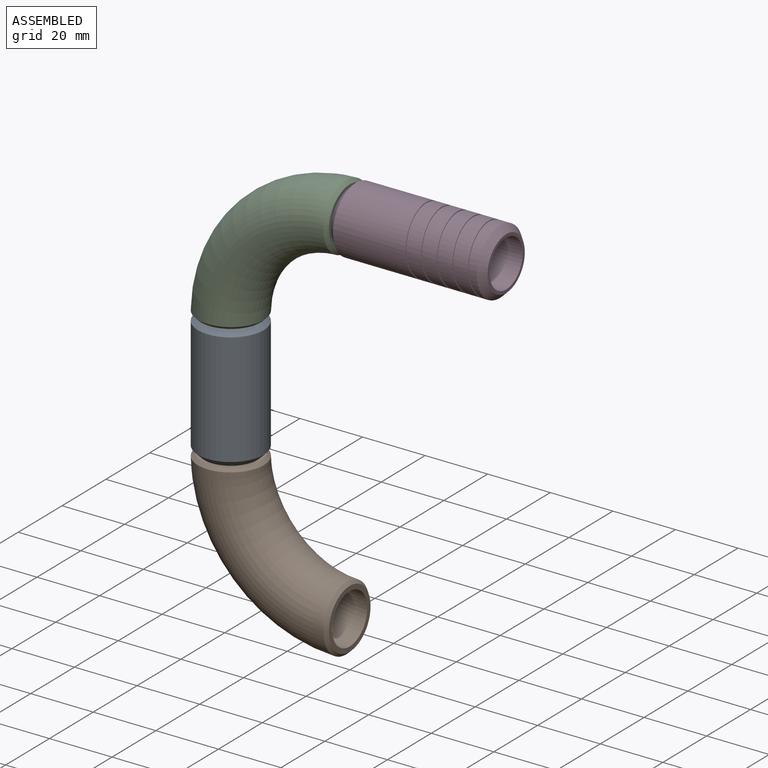
[diagram: assembled view]
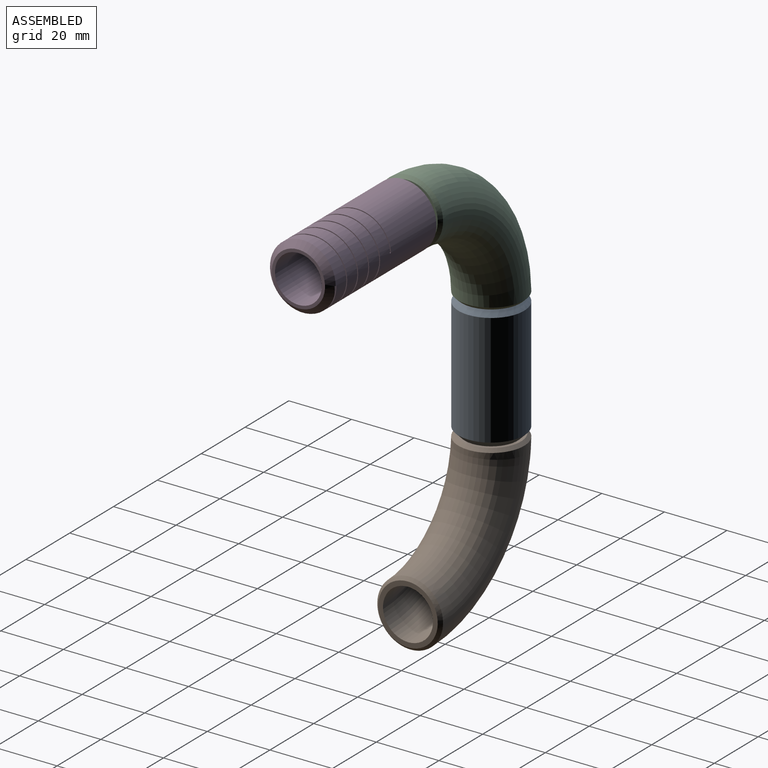
[diagram: assembled view, second angle]
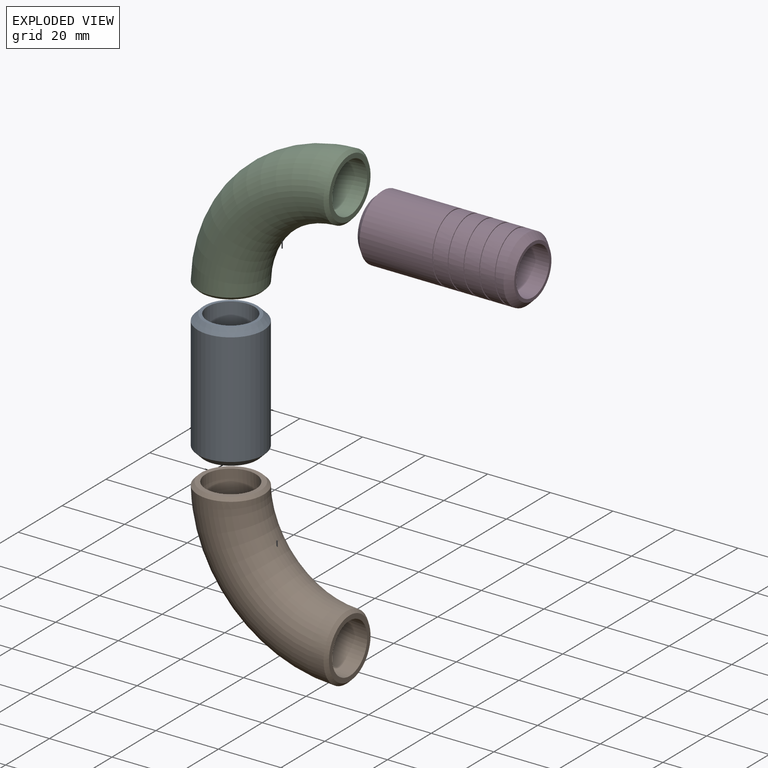
[diagram: exploded view]
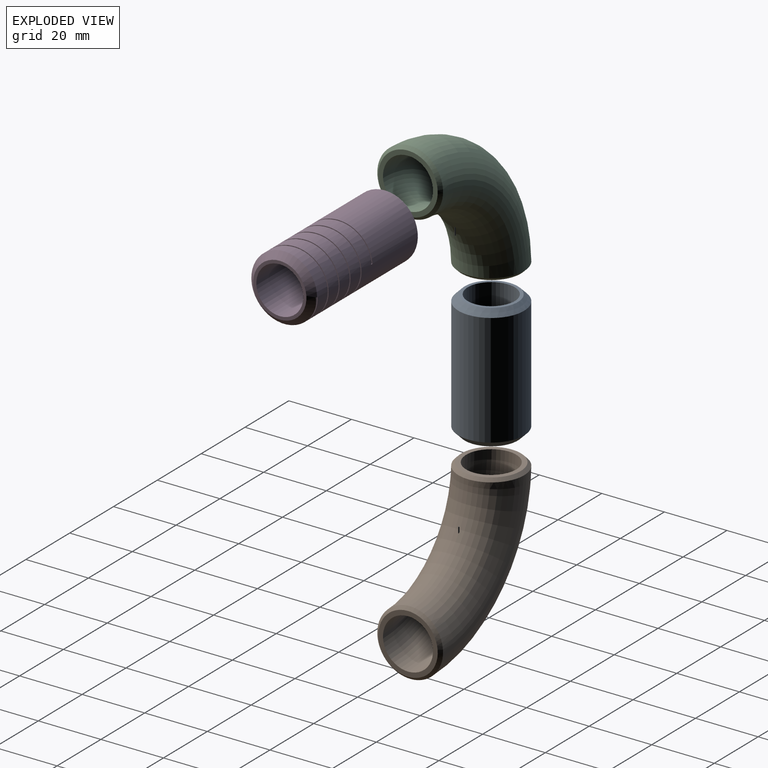
[diagram: exploded view, second angle]
ASSEMBLY  parts=4 mates=3
PART A: 6 faces, bbox 40x21x21 mm
  f0: cylinder r=10.5mm len=36mm, axis (-1,0,0), area 2375mm2, adj f4,f5
  f1: plane 17x17mm, normal (1,0,0), area 50.3mm2, adj f3,f5
  f2: plane 17x17mm, normal (-1,0,0), area 50.3mm2, adj f3,f4
  f3: cylinder r=7.5mm len=40mm, axis (-1,0,0), area 1885mm2, adj f1,f2
  f4: cone r=10.5mm half-angle=45deg, axis (1,0,0), area 168.8mm2, adj f0,f2
  f5: cone r=8.5mm half-angle=45deg, axis (-1,0,0), area 168.8mm2, adj f0,f1
PART B: 6 faces, bbox 52.5x21x52.5 mm
  f0: plane 19.03x19.03mm, normal (-1,0,0), area 82.6mm2, adj f3,f5
  f1: plane 19.03x19.03mm, normal (0,0,-1), area 82.6mm2, adj f3,f4
  f2: torus R=38mm, axis (0,1,0), area 3762mm2, adj f4,f5
  f3: torus R=38mm, axis (0,1,0), area 3000.4mm2, adj f0,f1
  f4: bspline ~20.99x20.98mm, area 88.7mm2, adj f1,f2
  f5: bspline ~20.99x20.98mm, area 88.7mm2, adj f0,f2
PART C: same geometry as B
PART D: 15 faces, bbox 50x21.5x24.8 mm
  f0: cylinder r=10.5mm len=30.5mm, axis (-1,0,0), area 1816mm2, adj f1,f9,f10,f12,f14
  f1: cylinder r=10.5mm len=21mm, axis (-1,0,0), area 296.9mm2, adj f0,f2,f12,f14
  f2: cylinder r=10.5mm len=21mm, axis (-1,0,0), area 296.9mm2, adj f1,f3,f12,f14
  f3: cylinder r=10.5mm len=21mm, axis (-1,0,0), area 296.8mm2, adj f2,f4,f12,f14
  f4: cylinder r=10.5mm len=21mm, axis (-1,0,0), area 163.7mm2, adj f3,f5,f11,f12,f14
  f5: cone r=10.5mm half-angle=45deg, axis (1,0,0), area 168.2mm2, adj f4,f7,f11,f12
  f6: plane 17x17mm, normal (1,0,0), area 50.3mm2, adj f8,f9
  f7: plane 17x17mm, normal (-1,0,0), area 50.3mm2, adj f5,f8
  f8: cylinder r=7.5mm len=50mm, axis (-1,0,0), area 2356.2mm2, adj f6,f7
  f9: cone r=8.5mm half-angle=45deg, axis (-1,0,0), area 168.8mm2, adj f0,f6
  f10: plane 0.5x0.25mm, normal (0,0,-1), area 0.1mm2, adj f0,f12,f13,f14
  f11: plane 0.5x0.25mm, normal (0,0,1), area 0.1mm2, adj f4,f5,f13,f14
  f12: bspline ~25x24.83mm, area 81.2mm2, adj f0,f1,f2,f3,f4,f5,f10,f13
  f13: cylinder r=10.25mm len=25.5mm, axis (1,0,0), area 161mm2, adj f10,f11,f12,f14
  f14: bspline ~25x24.83mm, area 81.7mm2, adj f0,f1,f2,f3,f4,f10,f11,f13
PLACE A rot(axis=(-0.71,0,-0.71),180deg) t=(-29.64,7.98,63.41)mm
PLACE B rot(axis=(0,1,0),180deg) t=(8.36,7.98,63.41)mm fixed
PLACE C rot(axis=(0,-1,0),90deg) t=(8.36,7.98,103.41)mm
PLACE D rot(axis=(0,1,0),180deg) t=(58.36,7.98,141.41)mm
MATE fastened B.f1 <-> A.f0  axis (0,0,1) through (-29.64,7.98,63.41)mm
MATE fastened D.f0 <-> C.f1  axis (-1,0,0) through (8.36,7.98,141.41)mm
MATE fastened C.f0 <-> A.f0  axis (0,0,-1) through (-29.64,7.98,103.41)mm
